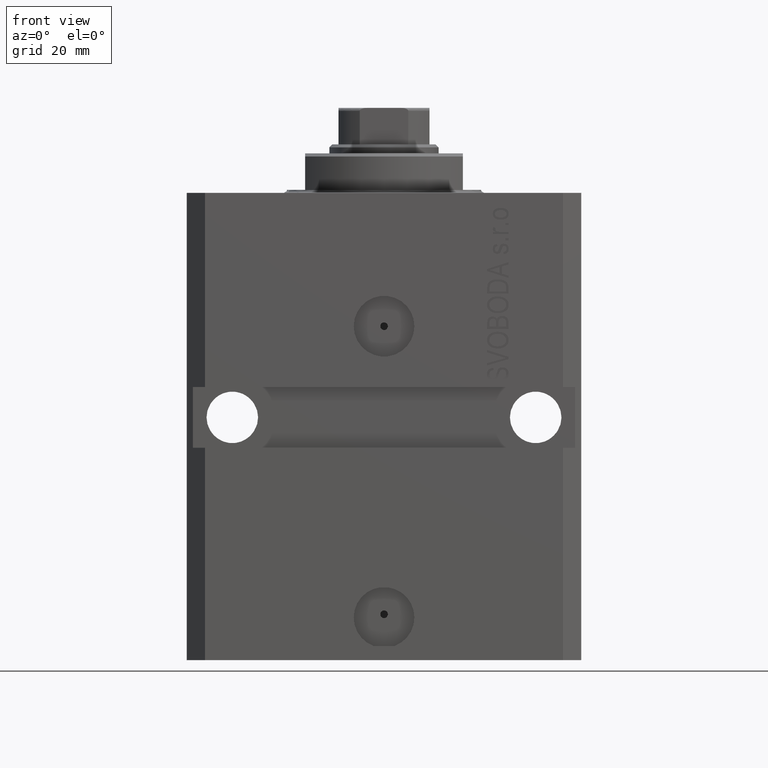
[diagram: clean part render]
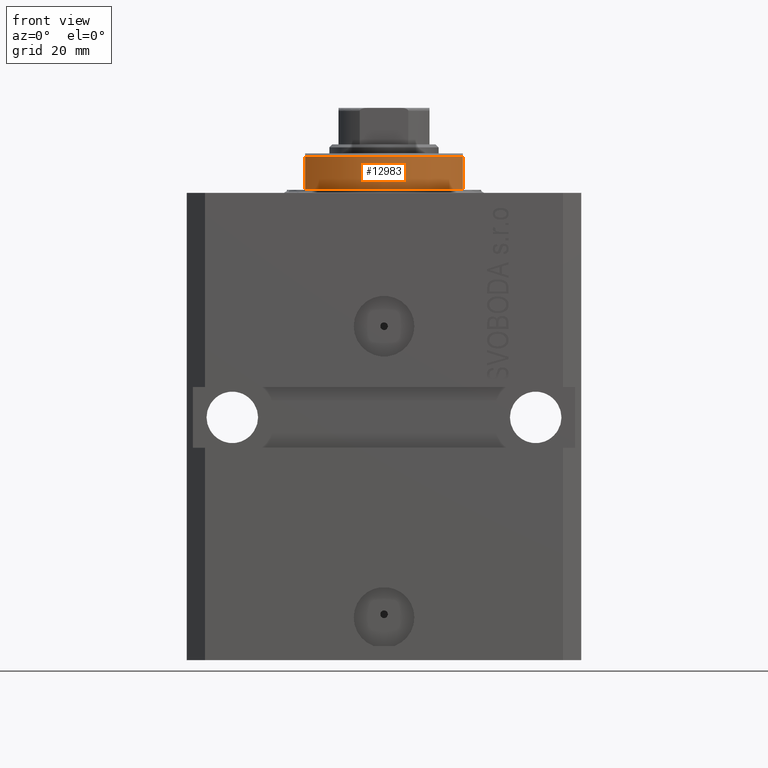
[diagram: same view with one face highlighted and labeled with its STEP entity id]
A machine part, front view. The second image highlights one B-rep face of the part: STEP entity #12983.
In plain terms, the highlighted cylindrical surface (partial cylindrical patch) has radius 16 mm, axis along (0, 0, -1).
Its self-contained STEP definition (entity closure, byte-faithful):
#1229 = VERTEX_POINT ( 'NONE', #7713 ) ;
#1241 = CARTESIAN_POINT ( 'NONE',  ( 0.000000000000000000, 0.000000000000000000, -0.4999999999999995559 ) ) ;
#1608 = VERTEX_POINT ( 'NONE', #33883 ) ;
#2921 = DIRECTION ( 'NONE',  ( 0.000000000000000000, 0.000000000000000000, 1.000000000000000000 ) ) ;
#5931 = CARTESIAN_POINT ( 'NONE',  ( 13.00000000000000000, -9.327379053088815652, -6.000000000000023981 ) ) ;
#7713 = CARTESIAN_POINT ( 'NONE',  ( -13.00000000000000000, -9.327379053088815652, -0.4999999999999995559 ) ) ;
#8194 = DIRECTION ( 'NONE',  ( -0.000000000000000000, -0.000000000000000000, -1.000000000000000000 ) ) ;
#8558 = CARTESIAN_POINT ( 'NONE',  ( 13.00000000000000000, -9.327379053088813876, -6.500000000000000000 ) ) ;
#8979 = VECTOR ( 'NONE', #18677, 1000.000000000000000 ) ;
#10596 = EDGE_CURVE ( 'NONE', #1229, #39122, #19840, .T. ) ;
#11709 = LINE ( 'NONE', #8558, #8979 ) ;
#12185 = DIRECTION ( 'NONE',  ( -1.000000000000000000, 0.000000000000000000, 0.000000000000000000 ) ) ;
#12983 = ADVANCED_FACE ( 'NONE', ( #22092 ), #42318, .T. ) ;
#14440 = AXIS2_PLACEMENT_3D ( 'NONE', #33686, #2921, #12185 ) ;
#16334 = EDGE_CURVE ( 'NONE', #39122, #22247, #23033, .T. ) ;
#18677 = DIRECTION ( 'NONE',  ( 0.000000000000000000, 0.000000000000000000, -1.000000000000000000 ) ) ;
#19840 = LINE ( 'NONE', #20508, #42981 ) ;
#20508 = CARTESIAN_POINT ( 'NONE',  ( -13.00000000000000000, -9.327379053088813876, -6.500000000000000000 ) ) ;
#22092 = FACE_OUTER_BOUND ( 'NONE', #29236, .T. ) ;
#22247 = VERTEX_POINT ( 'NONE', #5931 ) ;
#23033 = CIRCLE ( 'NONE', #14440, 16.00000000000000000 ) ;
#23322 = ORIENTED_EDGE ( 'NONE', *, *, #30641, .F. ) ;
#25024 = DIRECTION ( 'NONE',  ( -0.000000000000000000, -0.000000000000000000, 1.000000000000000000 ) ) ;
#25083 = EDGE_CURVE ( 'NONE', #1608, #1229, #25311, .T. ) ;
#25311 = CIRCLE ( 'NONE', #41832, 16.00000000000000000 ) ;
#29079 = CARTESIAN_POINT ( 'NONE',  ( -13.00000000000000000, -9.327379053088815652, -6.000000000000023981 ) ) ;
#29236 = EDGE_LOOP ( 'NONE', ( #23322, #39823, #39799, #37936 ) ) ;
#30641 = EDGE_CURVE ( 'NONE', #1608, #22247, #11709, .T. ) ;
#31795 = DIRECTION ( 'NONE',  ( 1.000000000000000000, 0.000000000000000000, 0.000000000000000000 ) ) ;
#33686 = CARTESIAN_POINT ( 'NONE',  ( 0.000000000000000000, 0.000000000000000000, -6.000000000000023981 ) ) ;
#33883 = CARTESIAN_POINT ( 'NONE',  ( 13.00000000000000000, -9.327379053088815652, -0.4999999999999995559 ) ) ;
#34217 = DIRECTION ( 'NONE',  ( 0.000000000000000000, 0.000000000000000000, -1.000000000000000000 ) ) ;
#35584 = DIRECTION ( 'NONE',  ( 1.000000000000000000, 0.000000000000000000, 0.000000000000000000 ) ) ;
#37936 = ORIENTED_EDGE ( 'NONE', *, *, #16334, .T. ) ;
#38745 = AXIS2_PLACEMENT_3D ( 'NONE', #39416, #25024, #35584 ) ;
#39122 = VERTEX_POINT ( 'NONE', #29079 ) ;
#39416 = CARTESIAN_POINT ( 'NONE',  ( 0.000000000000000000, 0.000000000000000000, -6.500000000000000000 ) ) ;
#39799 = ORIENTED_EDGE ( 'NONE', *, *, #10596, .T. ) ;
#39823 = ORIENTED_EDGE ( 'NONE', *, *, #25083, .T. ) ;
#41832 = AXIS2_PLACEMENT_3D ( 'NONE', #1241, #8194, #31795 ) ;
#42318 = CYLINDRICAL_SURFACE ( 'NONE', #38745, 16.00000000000000000 ) ;
#42981 = VECTOR ( 'NONE', #34217, 1000.000000000000000 ) ;